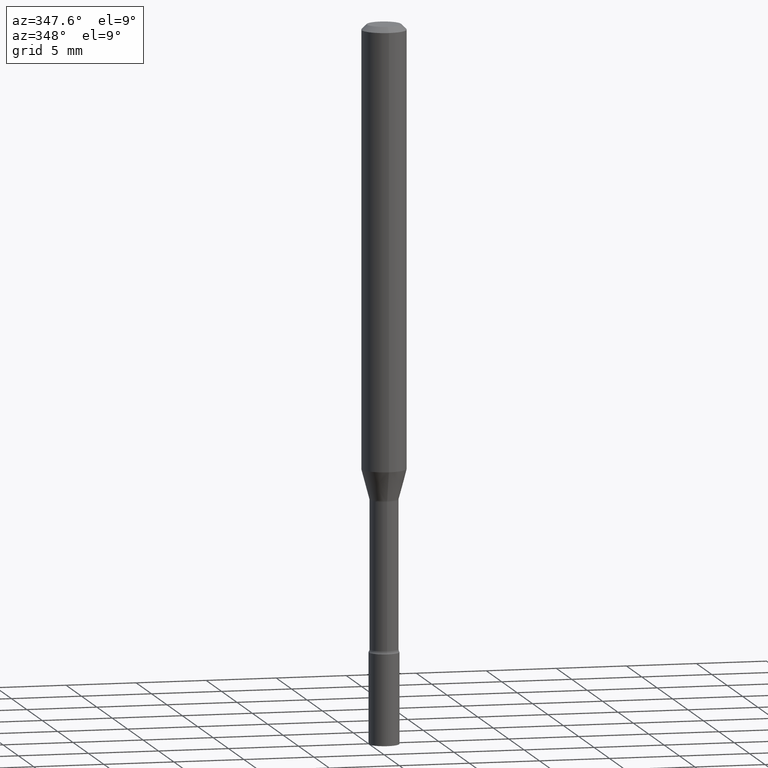
[diagram: clean part render]
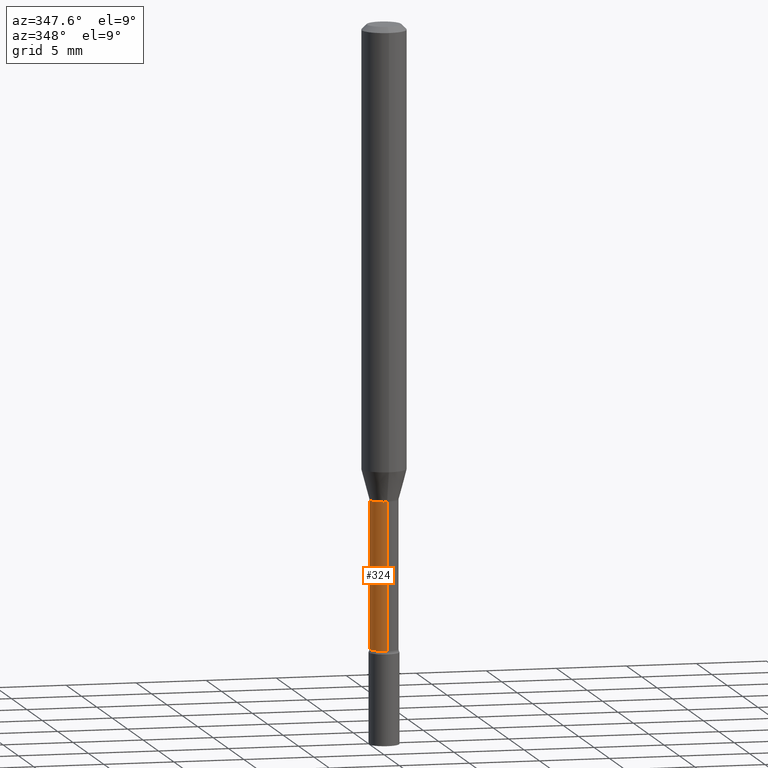
[diagram: same view with one face highlighted and labeled with its STEP entity id]
A machine part, auxiliary view. The second image highlights one B-rep face of the part: STEP entity #324.
In plain terms, the highlighted cylindrical surface (edge-blend (fillet) strip) has radius 1.0147 mm, axis along (-0, 0, 1).
Its self-contained STEP definition (entity closure, byte-faithful):
#7 = CARTESIAN_POINT ( 'NONE',  ( 2.838618229362026185E-16, 0.03994999999999538504, -1.321974787463811474 ) ) ;
#39 = CARTESIAN_POINT ( 'NONE',  ( 3.232817228075041045E-29, -4.615694518803152700E-15, -1.321974787463811252 ) ) ;
#69 = CIRCLE ( 'NONE', #237, 0.03995000000000000634 ) ;
#88 = DIRECTION ( 'NONE',  ( -6.982962677686265133E-15, -1.000000000000000000, 6.838167693777879394E-15 ) ) ;
#92 = CIRCLE ( 'NONE', #238, 0.03995000000000005491 ) ;
#101 = AXIS2_PLACEMENT_3D ( 'NONE', #442, #403, #405 ) ;
#124 = DIRECTION ( 'NONE',  ( -2.445445449286633018E-29, 3.491514787251194982E-15, 1.000000000000000000 ) ) ;
#128 = CARTESIAN_POINT ( 'NONE',  ( 4.246842609821854731E-29, -6.063481716857332136E-15, -1.736633549139569688 ) ) ;
#144 = CARTESIAN_POINT ( 'NONE',  ( 2.929212428171439828E-16, 0.03994999999999399726, -1.736633549139569910 ) ) ;
#150 = CARTESIAN_POINT ( 'NONE',  ( 2.838618229361602172E-16, 0.03995000000000003409, -1.394860157506853398E-16 ) ) ;
#170 = DIRECTION ( 'NONE',  ( -6.982962677686265922E-15, -1.000000000000000000, 6.838167693777870716E-15 ) ) ;
#173 = EDGE_CURVE ( 'NONE', #520, #267, #227, .T. ) ;
#181 = EDGE_CURVE ( 'NONE', #244, #267, #69, .T. ) ;
#182 = ORIENTED_EDGE ( 'NONE', *, *, #365, .F. ) ;
#185 = LINE ( 'NONE', #150, #231 ) ;
#221 = ORIENTED_EDGE ( 'NONE', *, *, #486, .T. ) ;
#227 = LINE ( 'NONE', #242, #252 ) ;
#231 = VECTOR ( 'NONE', #303, 39.37007874015748143 ) ;
#235 = EDGE_LOOP ( 'NONE', ( #182, #221, #348, #466 ) ) ;
#237 = AXIS2_PLACEMENT_3D ( 'NONE', #39, #444, #88 ) ;
#238 = AXIS2_PLACEMENT_3D ( 'NONE', #128, #251, #170 ) ;
#242 = CARTESIAN_POINT ( 'NONE',  ( -2.789693589735665255E-16, -0.03995000000000003409, 1.394860157506853398E-16 ) ) ;
#244 = VERTEX_POINT ( 'NONE', #7 ) ;
#251 = DIRECTION ( 'NONE',  ( -2.445445449286633018E-29, 3.491514787251194982E-15, 1.000000000000000000 ) ) ;
#252 = VECTOR ( 'NONE', #124, 39.37007874015748143 ) ;
#267 = VERTEX_POINT ( 'NONE', #477 ) ;
#271 = VERTEX_POINT ( 'NONE', #144 ) ;
#303 = DIRECTION ( 'NONE',  ( -2.445445449286633018E-29, 3.491514787251194982E-15, 1.000000000000000000 ) ) ;
#324 = ADVANCED_FACE ( 'NONE', ( #394 ), #356, .T. ) ;
#348 = ORIENTED_EDGE ( 'NONE', *, *, #173, .T. ) ;
#356 = CYLINDRICAL_SURFACE ( 'NONE', #101, 0.03995000000000003409 ) ;
#365 = EDGE_CURVE ( 'NONE', #271, #244, #185, .T. ) ;
#394 = FACE_OUTER_BOUND ( 'NONE', #235, .T. ) ;
#403 = DIRECTION ( 'NONE',  ( -2.445445449286633018E-29, 3.491514787251194982E-15, 1.000000000000000000 ) ) ;
#405 = DIRECTION ( 'NONE',  ( -6.982962677686265133E-15, -1.000000000000000000, 3.491514787251194588E-15 ) ) ;
#442 = CARTESIAN_POINT ( 'NONE',  ( 0.000000000000000000, 0.000000000000000000, 0.000000000000000000 ) ) ;
#444 = DIRECTION ( 'NONE',  ( -2.445445449286633018E-29, 3.491514787251194982E-15, 1.000000000000000000 ) ) ;
#466 = ORIENTED_EDGE ( 'NONE', *, *, #181, .F. ) ;
#477 = CARTESIAN_POINT ( 'NONE',  ( -2.789693589735340343E-16, -0.03995000000000462764, -1.321974787463810808 ) ) ;
#486 = EDGE_CURVE ( 'NONE', #271, #520, #92, .T. ) ;
#491 = CARTESIAN_POINT ( 'NONE',  ( -2.789693589735242721E-16, -0.03995000000000611950, -1.736633549139569244 ) ) ;
#520 = VERTEX_POINT ( 'NONE', #491 ) ;